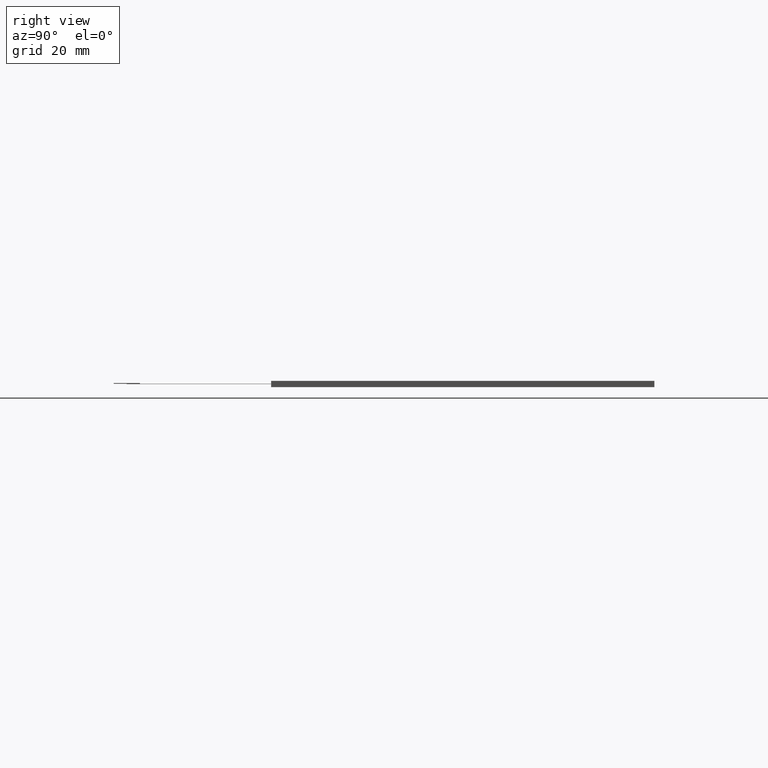
[diagram: clean part render]
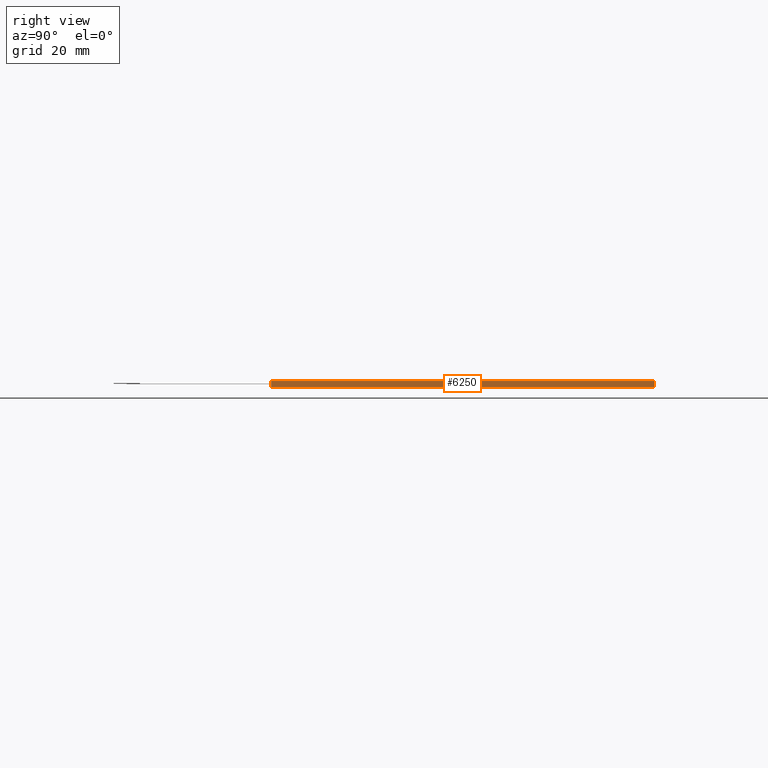
[diagram: same view with one face highlighted and labeled with its STEP entity id]
A machine part, right view. The second image highlights one B-rep face of the part: STEP entity #6250.
In plain terms, the highlighted planar face has unit normal (1, 0, 0).
Its self-contained STEP definition (entity closure, byte-faithful):
#312=PLANE('',#6580);
#614=FACE_OUTER_BOUND('',#920,.T.);
#920=EDGE_LOOP('',(#5929,#5930,#5931,#5932));
#1795=LINE('',#9850,#2675);
#1799=LINE('',#9857,#2679);
#1800=LINE('',#9860,#2680);
#1801=LINE('',#9861,#2681);
#2675=VECTOR('',#8065,10.);
#2679=VECTOR('',#8071,10.);
#2680=VECTOR('',#8074,10.);
#2681=VECTOR('',#8075,10.);
#3279=VERTEX_POINT('',#9847);
#3280=VERTEX_POINT('',#9849);
#3282=VERTEX_POINT('',#9855);
#3283=VERTEX_POINT('',#9859);
#4163=EDGE_CURVE('',#3279,#3280,#1795,.T.);
#4167=EDGE_CURVE('',#3279,#3282,#1799,.T.);
#4168=EDGE_CURVE('',#3283,#3282,#1800,.T.);
#4169=EDGE_CURVE('',#3280,#3283,#1801,.T.);
#5929=ORIENTED_EDGE('',*,*,#4163,.F.);
#5930=ORIENTED_EDGE('',*,*,#4167,.T.);
#5931=ORIENTED_EDGE('',*,*,#4168,.F.);
#5932=ORIENTED_EDGE('',*,*,#4169,.F.);
#6250=ADVANCED_FACE('',(#614),#312,.T.);
#6580=AXIS2_PLACEMENT_3D('',#9858,#8072,#8073);
#8065=DIRECTION('',(-1.2166827667125E-16,1.,0.));
#8071=DIRECTION('',(0.,0.,-1.));
#8072=DIRECTION('center_axis',(1.,1.2166827667125E-16,0.));
#8073=DIRECTION('ref_axis',(1.2166827667125E-16,-1.,0.));
#8074=DIRECTION('',(1.2166827667125E-16,-1.,0.));
#8075=DIRECTION('',(0.,0.,-1.));
#9847=CARTESIAN_POINT('',(93.8,-74.18,0.));
#9849=CARTESIAN_POINT('',(93.8,71.82,0.));
#9850=CARTESIAN_POINT('',(93.8,-74.18,0.));
#9855=CARTESIAN_POINT('',(93.8,-74.18,-2.35));
#9857=CARTESIAN_POINT('',(93.8,-74.18,0.));
#9858=CARTESIAN_POINT('Origin',(93.8,71.82,0.));
#9859=CARTESIAN_POINT('',(93.8,71.82,-2.35));
#9860=CARTESIAN_POINT('',(93.8,-74.18,-2.35));
#9861=CARTESIAN_POINT('',(93.8,71.82,0.));